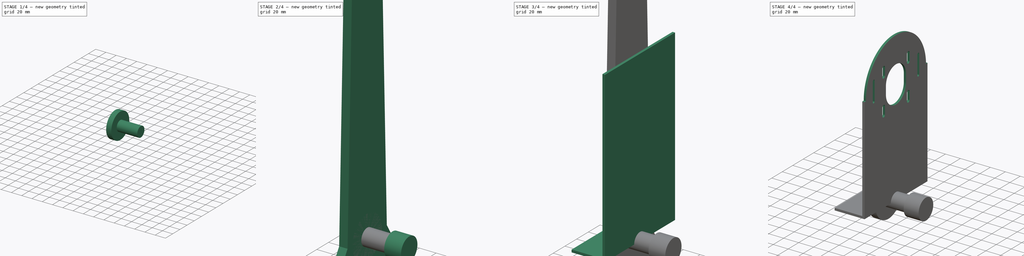
[diagram: build sequence overview — one tinted view per stage of 4, left to right]
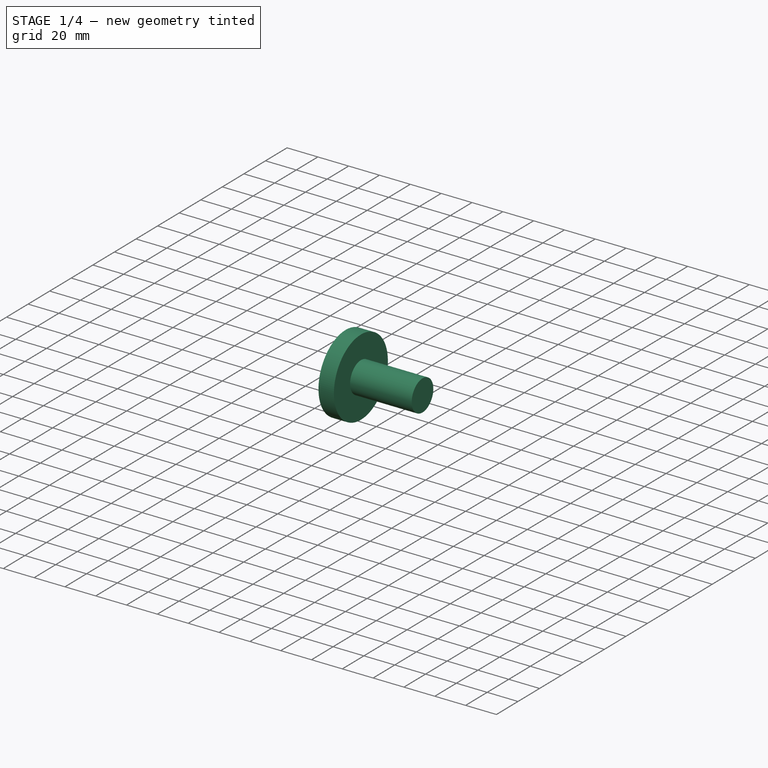
[diagram: stage 1 of 4 — iso view after this stage's code; geometry added in this stage tinted green]
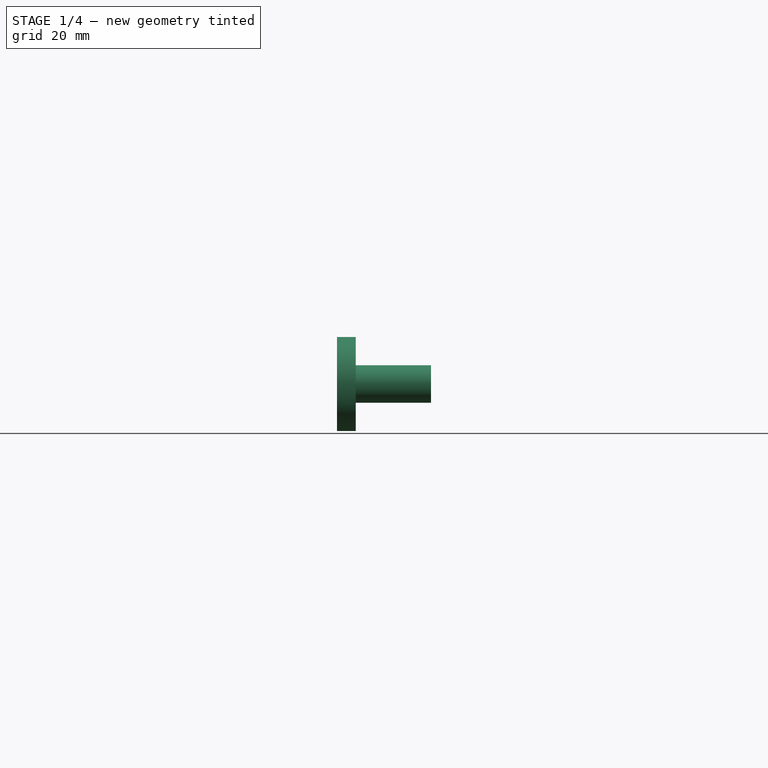
[diagram: stage 1 of 4 — front view after this stage's code; geometry added in this stage tinted green]
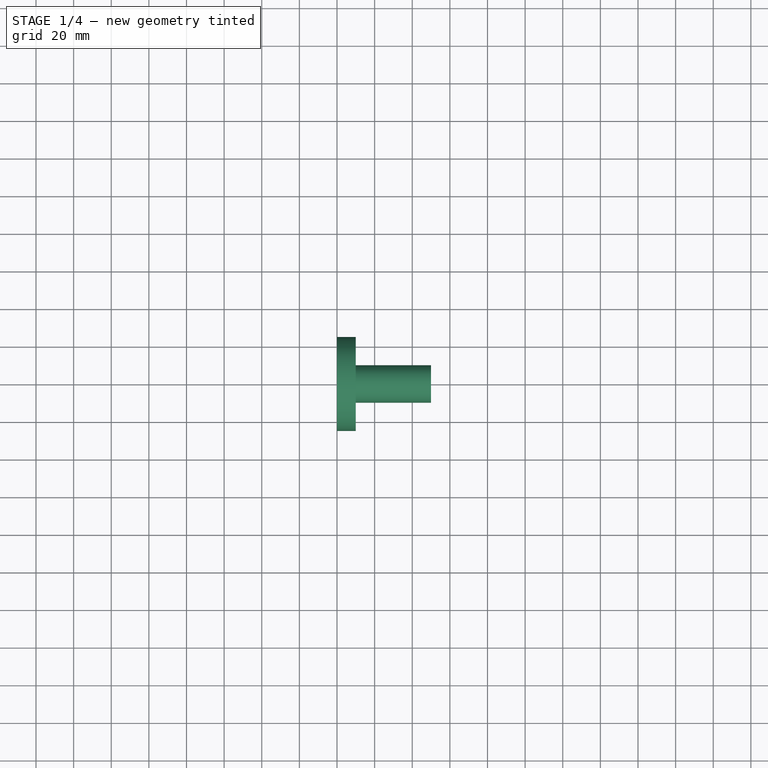
[diagram: stage 1 of 4 — top view after this stage's code; geometry added in this stage tinted green]
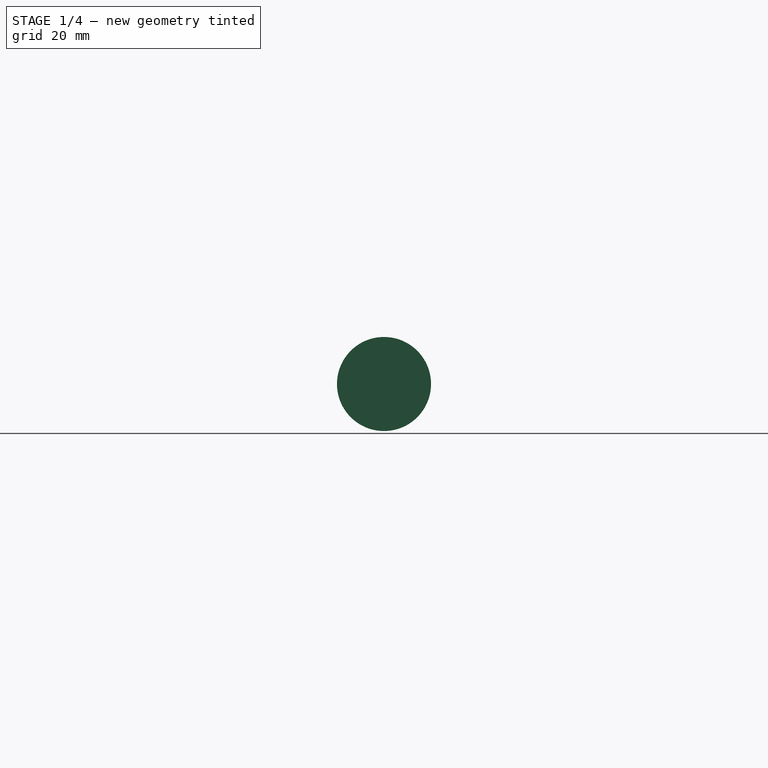
[diagram: stage 1 of 4 — right view after this stage's code; geometry added in this stage tinted green]
FCSTD DOCUMENT  (FreeCAD 0.21R33771 (Git))
Label: jrobot-y-axis-parts
License: All rights reserved
LicenseURL: http://en.wikipedia.org/wiki/All_rights_reserved
objects: PartDesign::CoordinateSystem×11, Sketcher::SketchObject×9, PartDesign::Pad×6, PartDesign::Body×3, App::Part×3, PartDesign::Pocket×2, PartDesign::Hole×1, App::DocumentObjectGroup×1
note: 41 computed .brp shape members not serialized (recipe doc carries the construction recipe); baked Part::Feature solids carry a one-line shape summary decoded from their .brp

FEATURE [PartDesign::Body] Body  label="B_Y_Axis_Base_Left"
  Group = -> [Sketch,Pad,Sketch001,Hole,Sketch002,Pad001,Sketch104,Pocket,Sketch105,Pocket001]
  Origin = -> Origin001
  Tip = -> Pocket001
FEATURE [App::Part] Part  label="P_Y_Axis_Base_Left"
  Group = -> [Body,LCS_Y_Axis_Base_Left_Bolt1,LCS_Y_Axis_Base_Left_Bolt0,LCS_Y_Axis_Base_Left_Bolt2,LCS_Y_Axis_Base_Left_Bolt3,LCS_Y_Axis_Base_Left_Origin,LCS_Y_Axis_Base_Pivot,LCS_Y_Axis_Base_Left_MotorMount]
  Origin = -> Origin
FEATURE [Sketcher::SketchObject] Sketch106
  FullyConstrained = true
  MapMode = 5
  Placement = pos=(0,0,0) rot=(0.57735,0.57735,0.57735;2.0944rad)
  Support = -> [YZ_Plane005]
  sketch-geometry (1):
    g0: Circle CenterX=0 CenterY=0 CenterZ=0 NormalX=0 NormalY=0 NormalZ=1 AngleXU=0 Radius=25
  constraints (2):
    c: Coincident(g0,g-1)
    c: Diameter(g0) = 50
FEATURE [PartDesign::Pad] Pad003
  Direction = (1,-2e-16,3e-16)
  Length = 10
  Length2 = 10
  Placement = pos=(0,0,0) rot=(1,1,1;2.0944rad)
  Profile = -> Sketch106
  ReferenceAxis = -> Sketch106 [N_Axis]
  Type = 0
FEATURE [PartDesign::CoordinateSystem] LCS_Origin
  AttacherType = Attacher::AttachEngine3D
FEATURE [Sketcher::SketchObject] Sketch107
  FullyConstrained = true
  MapMode = 5
  Placement = pos=(0,0,0) rot=(0.57735,0.57735,0.57735;2.0944rad)
  Support = -> [YZ_Plane005]
  sketch-geometry (1):
    g0: Circle CenterX=0 CenterY=0 CenterZ=0 NormalX=0 NormalY=0 NormalZ=1 AngleXU=0 Radius=10
  constraints (2):
    c: Coincident(g0,g-1)
    c: Diameter(g0) = 20
FEATURE [PartDesign::Pad] Pad004
  BaseFeature = -> Pad003
  Direction = (1,-2e-16,3e-16)
  Length = 50
  Length2 = 10
  Placement = pos=(0,0,0) rot=(1,1,1;2.0944rad)
  Profile = -> Sketch107
  ReferenceAxis = -> Sketch107 [N_Axis]
  Type = 0
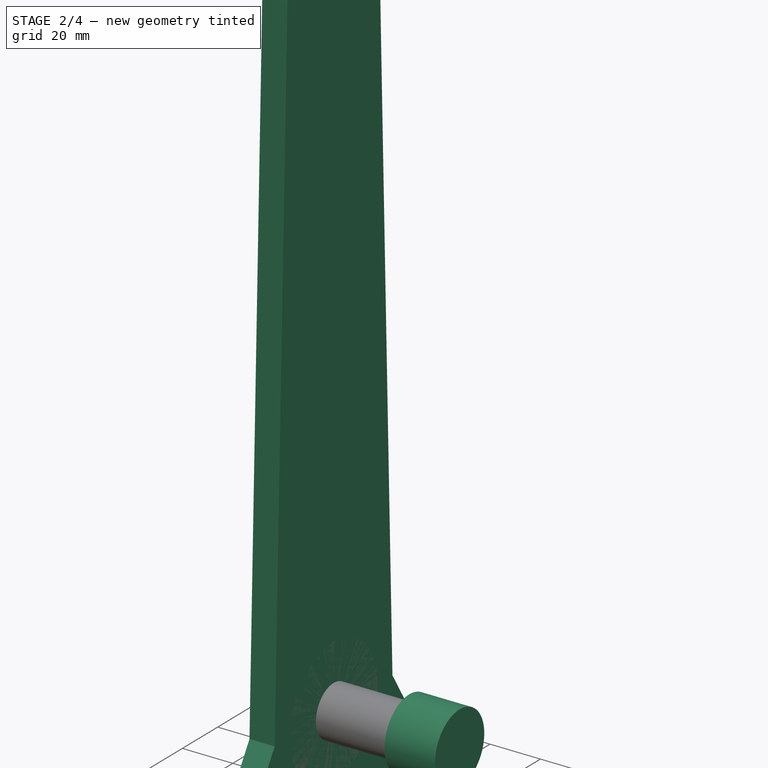
[diagram: stage 2 of 4 — iso view after this stage's code; geometry added in this stage tinted green]
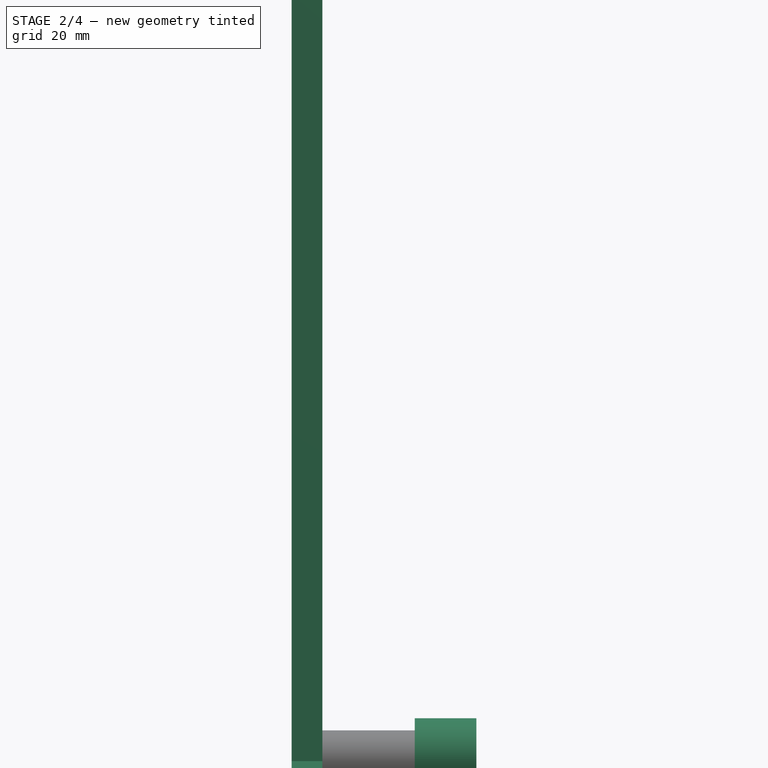
[diagram: stage 2 of 4 — front view after this stage's code; geometry added in this stage tinted green]
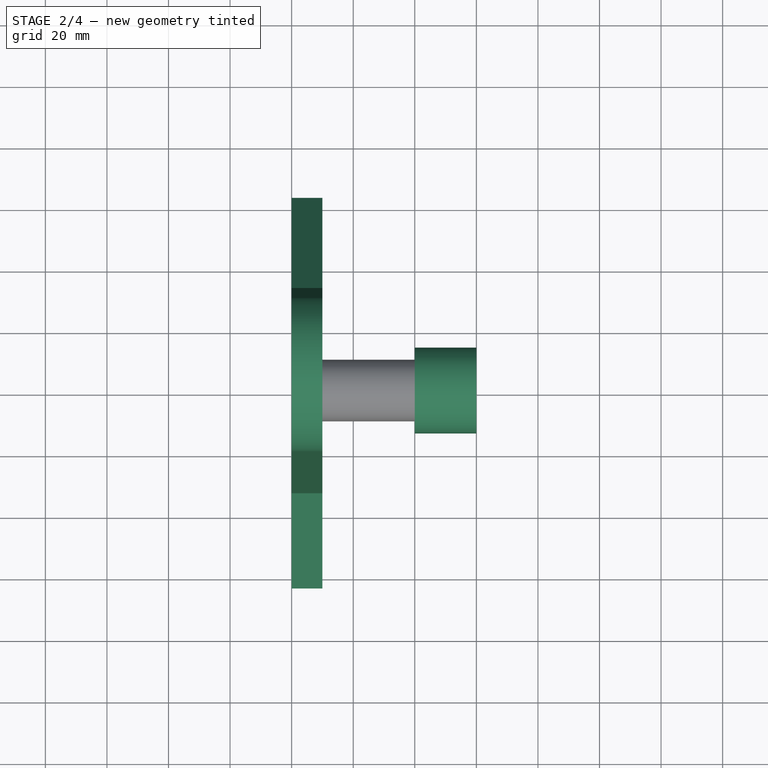
[diagram: stage 2 of 4 — top view after this stage's code; geometry added in this stage tinted green]
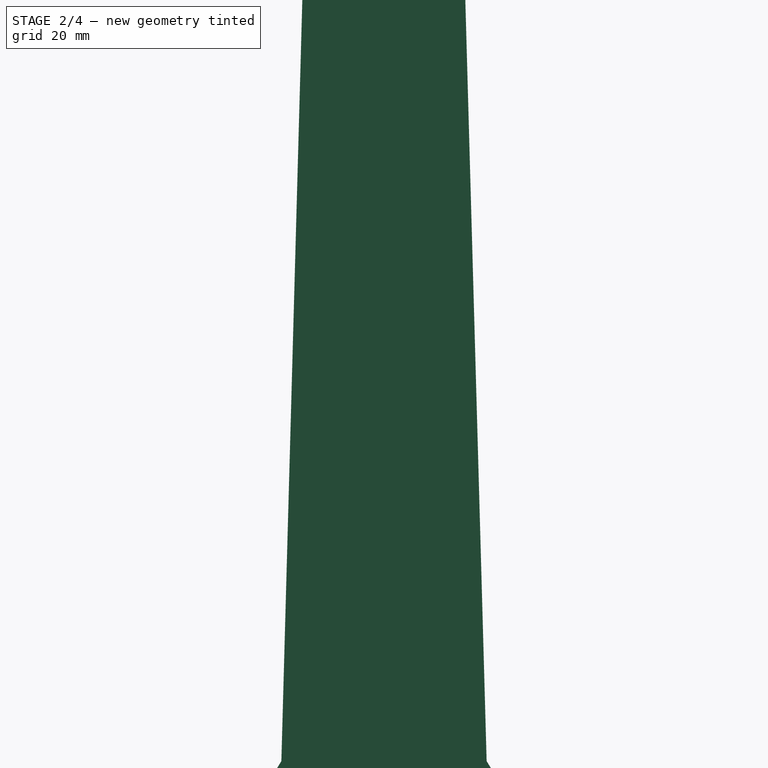
[diagram: stage 2 of 4 — right view after this stage's code; geometry added in this stage tinted green]
FEATURE [Sketcher::SketchObject] Sketch003
  FullyConstrained = false
  MapMode = 5
  Placement = pos=(0,0,0) rot=(0.57735,0.57735,0.57735;2.0944rad)
  Support = -> [YZ_Plane003]
  sketch-geometry (6):
    g0: ArcOfCircle CenterX=-0.0718095 CenterY=300 CenterZ=0 NormalX=0 NormalY=0 NormalZ=1 AngleXU=0 Radius=25 StartAngle=0.0279955 EndAngle=3.11407
    g1: LineSegment StartX=24.9184 StartY=300.7 StartZ=0 EndX=33.3388 EndY=0 EndZ=0
    g2: LineSegment StartX=-25.0623 StartY=300.688 StartZ=0 EndX=-33.3388 EndY=0 EndZ=0
    g3: LineSegment StartX=-33.3388 StartY=0 StartZ=0 EndX=-63.4439 EndY=-48.7326 EndZ=0
    g4: LineSegment StartX=33.3388 StartY=0 StartZ=0 EndX=63.4439 EndY=-48.7326 EndZ=0
    g5: ArcOfCircle CenterX=0 CenterY=0 CenterZ=0 NormalX=0 NormalY=0 NormalZ=1 AngleXU=0 Radius=80 StartAngle=3.79659 EndAngle=5.62819
  constraints (13):
    c: Tangent(g2,g0) = -1.5708
    c: Tangent(g1,g0) = 1.5708
    c: Diameter(g0) = 50
    c: Coincident(g3,g2)
    c: Coincident(g4,g1)
    c: Horizontal(g4,g3)
    c: Horizontal(g1,g-1)
    c: Symmetric(g2,g1,g-2)
    c: DistanceY(g-1,g0) = 300
    c: Coincident(g5,g3)
    c: Coincident(g4,g5)
    c: Diameter(g5) = 160
    c: Coincident(g5,g-1)
FEATURE [PartDesign::Pad] Pad002
  Direction = (1,-2e-16,3e-16)
  Length = 10
  Length2 = 10
  Placement = pos=(0,0,0) rot=(0.57735,0.57735,0.57735;2.0944rad)
  Profile = -> Sketch003
  ReferenceAxis = -> Sketch003 [N_Axis]
  Type = 0
FEATURE [Sketcher::SketchObject] Sketch108
  AttachmentOffset = pos=(0,0,40) rot=(0,0,1;0rad)
  FullyConstrained = false
  MapMode = 5
  Placement = pos=(40,-8.9e-15,8.9e-15) rot=(0.57735,0.57735,0.57735;2.0944rad)
  Support = -> [YZ_Plane005]
  sketch-geometry (1):
    g0: Circle CenterX=0 CenterY=0 CenterZ=0 NormalX=0 NormalY=0 NormalZ=1 AngleXU=0 Radius=13.9399
  constraints (1):
    c: Coincident(g0,g-1)
FEATURE [PartDesign::Pad] Pad005
  BaseFeature = -> Pad004
  Direction = (1,-2e-16,3e-16)
  Length = 20
  Length2 = 10
  Placement = pos=(0,0,0) rot=(1,1,1;2.0944rad)
  Profile = -> Sketch108
  ReferenceAxis = -> Sketch108 [N_Axis]
  Type = 0
FEATURE [PartDesign::Body] Body002  label="Body"
  Group = -> [Sketch106,Pad003,Sketch107,Pad004,Sketch108,Pad005]
  Origin = -> Origin005
  Tip = -> Pad005
FEATURE [App::Part] Part002  label="P_Y_Axis_RotorWheel"
  Group = -> [Body002,LCS_Origin]
  Origin = -> Origin004
FEATURE [App::DocumentObjectGroup] Group  label="Parts"
  Group = -> [Part,Part001,Part002]
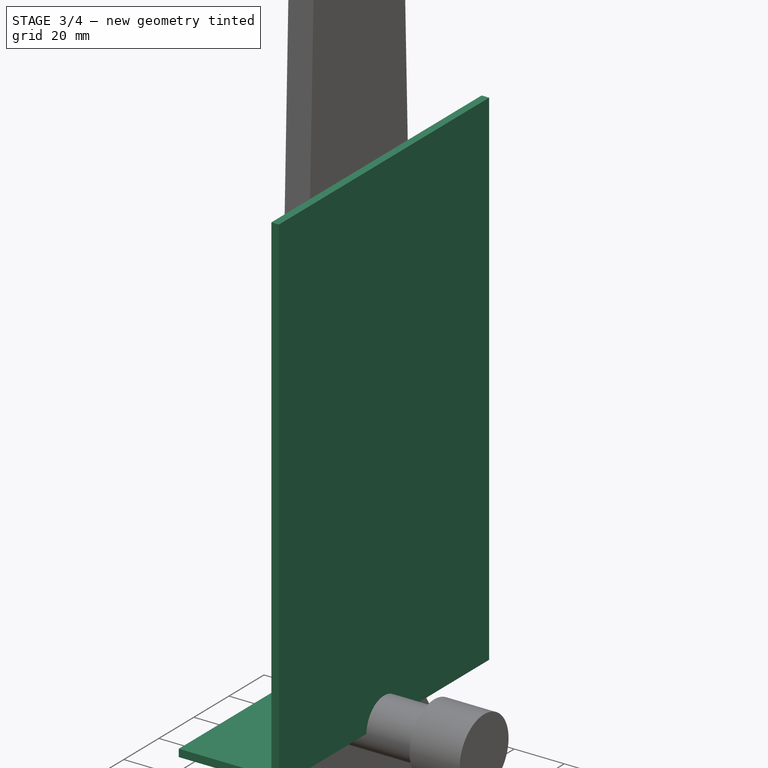
[diagram: stage 3 of 4 — iso view after this stage's code; geometry added in this stage tinted green]
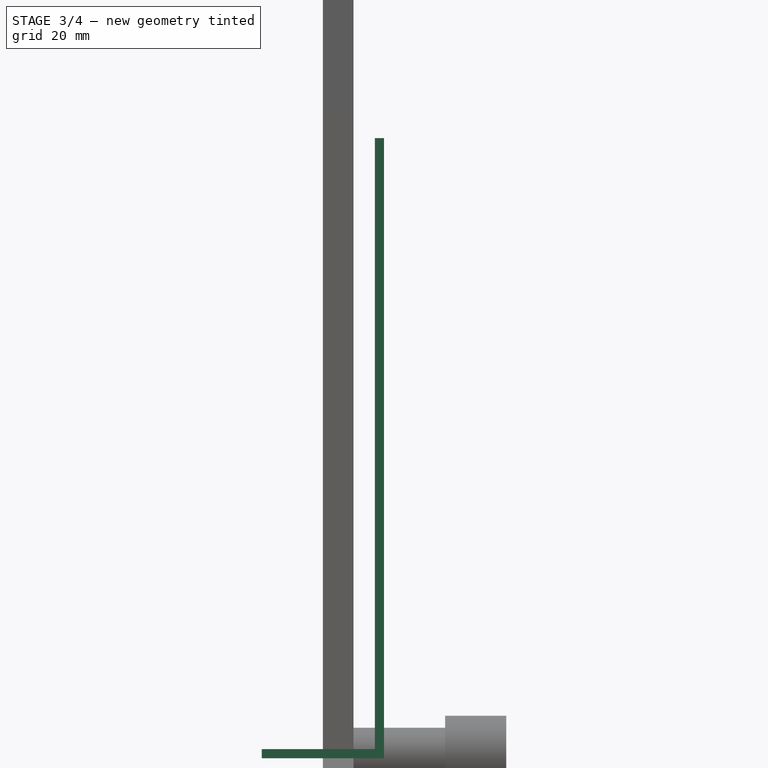
[diagram: stage 3 of 4 — front view after this stage's code; geometry added in this stage tinted green]
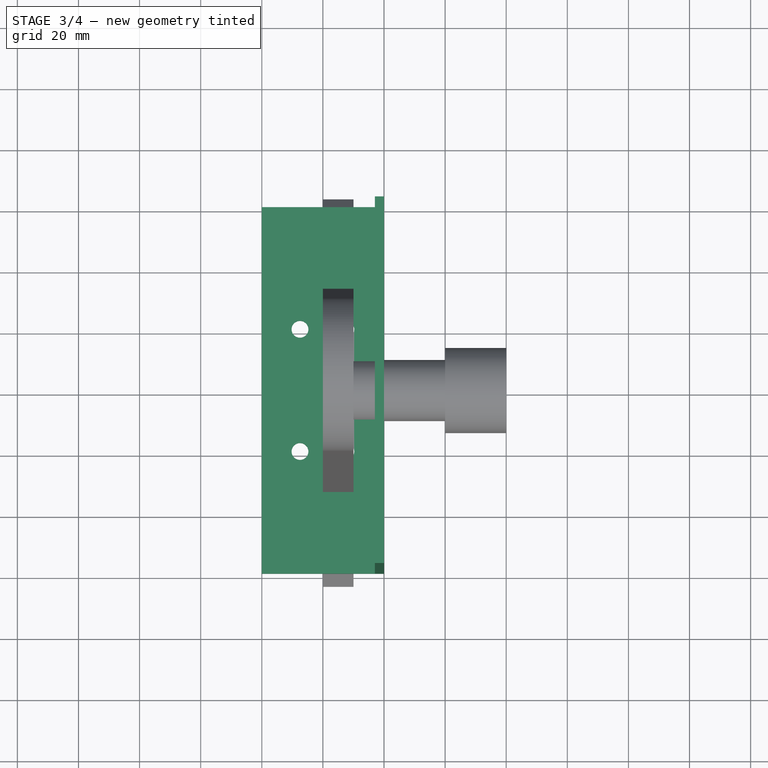
[diagram: stage 3 of 4 — top view after this stage's code; geometry added in this stage tinted green]
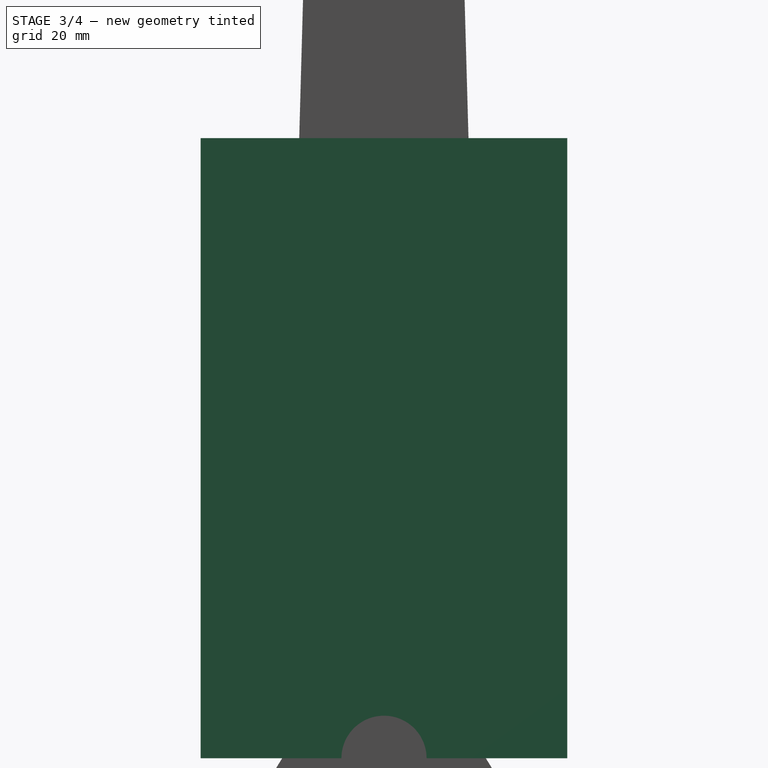
[diagram: stage 3 of 4 — right view after this stage's code; geometry added in this stage tinted green]
FEATURE [Sketcher::SketchObject] Sketch
  FullyConstrained = true
  MapMode = 5
  Support = -> [XY_Plane001]
  sketch-geometry (4):
    g0: LineSegment StartX=-20 StartY=60 StartZ=0 EndX=20 EndY=60 EndZ=0
    g1: LineSegment StartX=20 StartY=60 StartZ=0 EndX=20 EndY=-60 EndZ=0
    g2: LineSegment StartX=20 StartY=-60 StartZ=0 EndX=-20 EndY=-60 EndZ=0
    g3: LineSegment StartX=-20 StartY=-60 StartZ=0 EndX=-20 EndY=60 EndZ=0
  constraints (10):
    c: Coincident(g0,g1)
    c: Coincident(g1,g2)
    c: Coincident(g2,g3)
    c: Coincident(g3,g0)
    c: Horizontal(g2)
    c: Vertical(g1)
    c: Symmetric(g0,g0,g-2)
    c: Symmetric(g0,g2,g-1)
    c: DistanceX(g0,g0) = 40
    c: DistanceY(g3,g3) = 120
FEATURE [PartDesign::Pad] Pad
  Direction = (0,0,1)
  Length = 3
  Length2 = 10
  Profile = -> Sketch
  ReferenceAxis = -> Sketch [N_Axis]
  Type = 0
FEATURE [Sketcher::SketchObject] Sketch001
  AttachmentOffset = pos=(0,0,3) rot=(0,0,1;0rad)
  FullyConstrained = true
  MapMode = 5
  Placement = pos=(0,0,3) rot=(0,0,1;0rad)
  Support = -> [XY_Plane001]
  sketch-geometry (4):
    g0: Circle CenterX=-7.5 CenterY=20 CenterZ=0 NormalX=0 NormalY=0 NormalZ=1 AngleXU=0 Radius=2.5
    g1: Circle CenterX=7.5 CenterY=20 CenterZ=0 NormalX=0 NormalY=0 NormalZ=1 AngleXU=0 Radius=2.5
    g2: Circle CenterX=-7.5 CenterY=-20 CenterZ=0 NormalX=0 NormalY=0 NormalZ=1 AngleXU=0 Radius=2.5
    g3: Circle CenterX=7.5 CenterY=-20 CenterZ=0 NormalX=0 NormalY=0 NormalZ=1 AngleXU=0 Radius=2.5
  constraints (10):
    c: Horizontal(g3,g2)
    c: Vertical(g1,g3)
    c: Equal(g0,g1)
    c: Equal(g1,g3)
    c: Equal(g3,g2)
    c: Diameter(g0) = 5
    c: Symmetric(g0,g2,g-1)
    c: Symmetric(g0,g1,g-2)
    c: DistanceX(g2,g3) = 15
    c: DistanceY(g2,g0) = 40
FEATURE [PartDesign::Hole] Hole
  BaseFeature = -> Pad
  CustomThreadClearance = 0
  Depth = 25
  DepthType = 0
  Diameter = 5.5
  DrillForDepth = false
  DrillPoint = 1
  DrillPointAngle = 118
  HoleCutCountersinkAngle = 90
  HoleCutCustomValues = false
  HoleCutDepth = 0
  HoleCutDiameter = 6.1
  HoleCutType = 0
  ModelThread = false
  Profile = -> Sketch001
  Tapered = false
  TaperedAngle = 90
  ThreadClass = 0
  ThreadDepth = 25
  ThreadDepthType = 0
  ThreadDirection = 0
  ThreadFit = 0
  ThreadSize = 13
  ThreadType = 1
  Threaded = false
  UseCustomThreadClearance = false
FEATURE [PartDesign::CoordinateSystem] LCS_Y_Axis_Base_Left_Bolt0  label="LCS_Y_Axis_Base_Left_Bolt1"
  AttacherType = Attacher::AttachEngine3D
  MapMode = 11
  Placement = pos=(-7.5,-20,3) rot=(0,0,1;1.5708rad)
  Support = -> [Hole]
FEATURE [PartDesign::CoordinateSystem] LCS_Y_Axis_Base_Left_Bolt1  label="LCS_Y_Axis_Base_Left_Bolt0"
  AttacherType = Attacher::AttachEngine3D
  MapMode = 11
  Placement = pos=(-7.5,20,3) rot=(0,0,1;1.5708rad)
  Support = -> [Sketch001]
FEATURE [PartDesign::CoordinateSystem] LCS_Y_Axis_Base_Left_Bolt2
  AttacherType = Attacher::AttachEngine3D
  MapMode = 11
  Placement = pos=(7.5,20,3) rot=(0,0,1;1.5708rad)
  Support = -> [Hole]
FEATURE [PartDesign::CoordinateSystem] LCS_Y_Axis_Base_Left_Bolt3
  AttacherType = Attacher::AttachEngine3D
  MapMode = 11
  Placement = pos=(7.5,-20,3) rot=(0,0,1;1.5708rad)
  Support = -> [Hole]
FEATURE [PartDesign::CoordinateSystem] LCS_Y_Axis_Base_Left_Origin
  AttacherType = Attacher::AttachEngine3D
FEATURE [Sketcher::SketchObject] Sketch002
  AttachmentOffset = pos=(0,0,3) rot=(0,0,1;0rad)
  FullyConstrained = true
  MapMode = 5
  Placement = pos=(0,0,3) rot=(0,0,1;0rad)
  Support = -> [XY_Plane001]
  sketch-geometry (4):
    g0: LineSegment StartX=17 StartY=60 StartZ=0 EndX=20 EndY=60 EndZ=0
    g1: LineSegment StartX=20 StartY=60 StartZ=0 EndX=20 EndY=-60 EndZ=0
    g2: LineSegment StartX=20 StartY=-60 StartZ=0 EndX=17 EndY=-60 EndZ=0
    g3: LineSegment StartX=17 StartY=-60 StartZ=0 EndX=17 EndY=60 EndZ=0
  constraints (11):
    c: Coincident(g0,g1)
    c: Coincident(g1,g2)
    c: Coincident(g2,g3)
    c: Coincident(g3,g0)
    c: Horizontal(g0)
    c: Horizontal(g2)
    c: Vertical(g1)
    c: DistanceY(g1,g1) = 120
    c: DistanceX(g-1,g1) = 20
    c: DistanceX(g2,g2) = 3
    c: Symmetric(g2,g0,g-1)
FEATURE [PartDesign::Pad] Pad001
  BaseFeature = -> Hole
  Direction = (0,0,1)
  Length = 200
  Length2 = 10
  Profile = -> Sketch002
  ReferenceAxis = -> Sketch002 [N_Axis]
  Type = 0
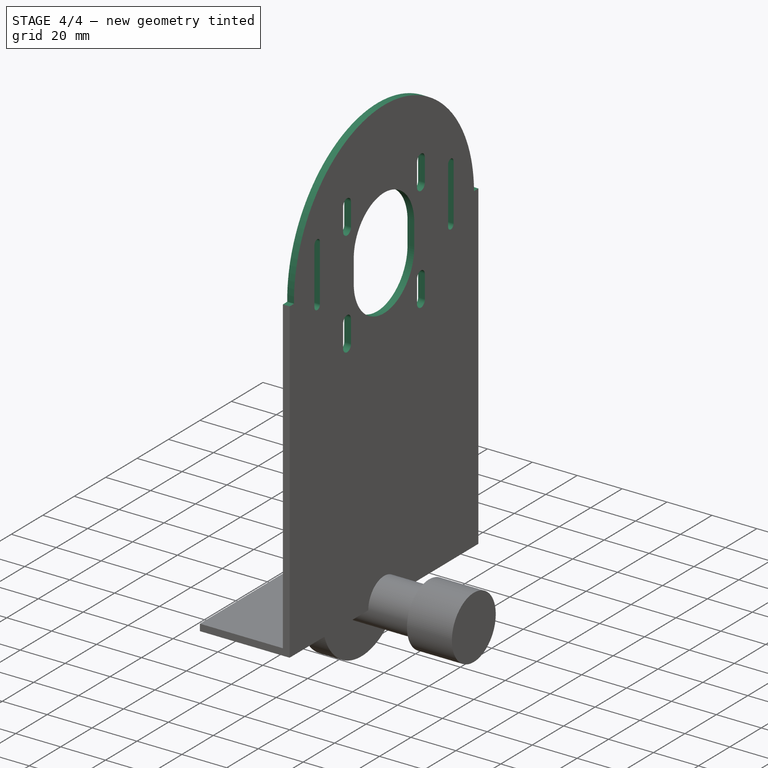
[diagram: stage 4 of 4 — iso view after this stage's code; geometry added in this stage tinted green]
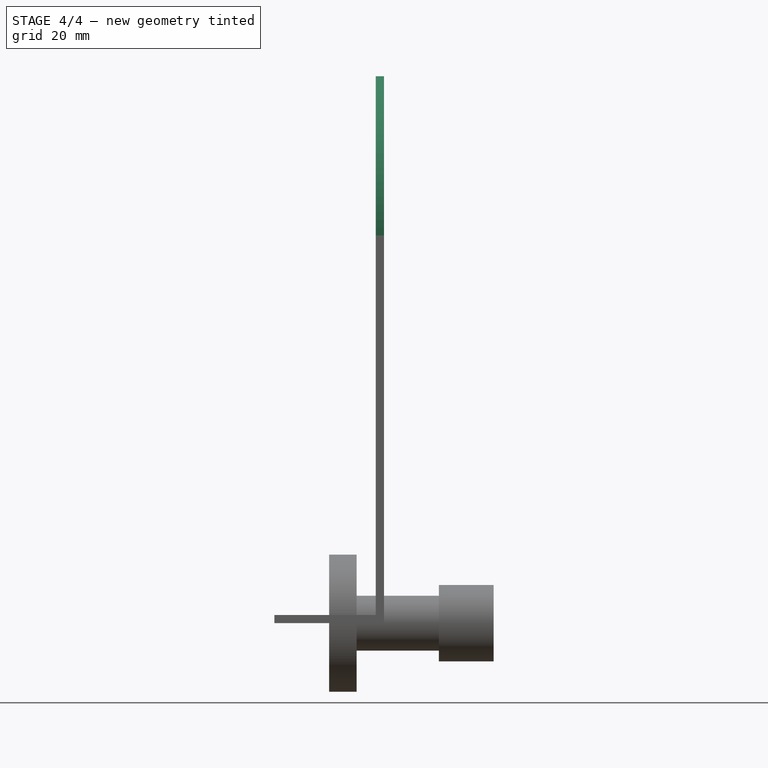
[diagram: stage 4 of 4 — front view after this stage's code; geometry added in this stage tinted green]
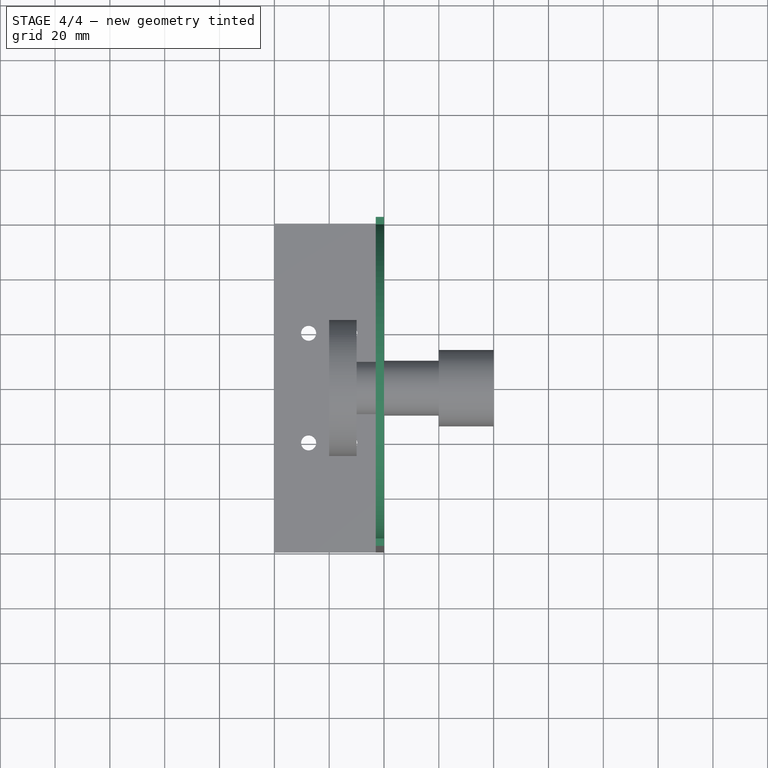
[diagram: stage 4 of 4 — top view after this stage's code; geometry added in this stage tinted green]
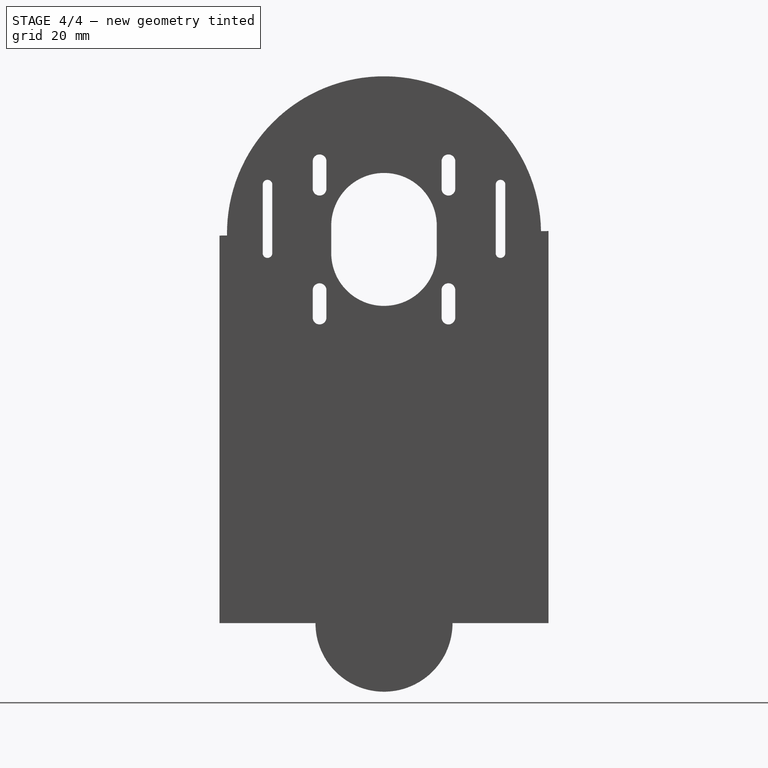
[diagram: stage 4 of 4 — right view after this stage's code; geometry added in this stage tinted green]
FEATURE [PartDesign::Body] Body001  label="B_Y_Axis_Arm_Left"
  Group = -> [Sketch003,Pad002]
  Origin = -> Origin003
  Tip = -> Pad002
FEATURE [PartDesign::CoordinateSystem] LCS_Y_Axis_Base_Pivot
  AttacherType = Attacher::AttachEngine3D
  Placement = pos=(20,0,140) rot=(0,0,1;0rad)
FEATURE [PartDesign::CoordinateSystem] LCS_Y_Axis_Arm_Left_Pivot
  AttacherType = Attacher::AttachEngine3D
FEATURE [PartDesign::CoordinateSystem] LCS_Y_Axis_Base_Left_MotorMount
  AttacherType = Attacher::AttachEngine3D
  Placement = pos=(17,0,80) rot=(0,0,1;0rad)
FEATURE [PartDesign::CoordinateSystem] LCS_Y_Axis_ZMotor
  AttacherType = Attacher::AttachEngine3D
  Placement = pos=(0,0,70) rot=(0,0,1;0rad)
FEATURE [PartDesign::CoordinateSystem] LCS_Y_Axis_ZPivot
  AttacherType = Attacher::AttachEngine3D
  Placement = pos=(0,0,120) rot=(0,0,1;0rad)
FEATURE [App::Part] Part001  label="P_Y_Axis_Arm_Left"
  Group = -> [Body001,LCS_Y_Axis_Arm_Left_Pivot,LCS_Y_Axis_ZMotor,LCS_Y_Axis_ZPivot]
  Origin = -> Origin002
FEATURE [Sketcher::SketchObject] Sketch104  label="S_Y_Axis_MotorMount_Slots"
  AttachmentOffset = pos=(0,140,20) rot=(0,0,1;0rad)
  FullyConstrained = true
  MapMode = 4
  Placement = pos=(20,0,140) rot=(0.57735,0.57735,0.57735;2.0944rad)
  Support = -> [Part001]
  sketch-geometry (28):
    g0: ArcOfCircle CenterX=-23.5 CenterY=28.5 CenterZ=0 NormalX=0 NormalY=0 NormalZ=1 AngleXU=0 Radius=2.5 StartAngle=0 EndAngle=3.14159
    g1: ArcOfCircle CenterX=-23.5 CenterY=18.5 CenterZ=0 NormalX=0 NormalY=0 NormalZ=1 AngleXU=0 Radius=2.5 StartAngle=3.14159 EndAngle=6.28319
    g2: LineSegment StartX=-26 StartY=28.5 StartZ=0 EndX=-26 EndY=18.5 EndZ=0
    g3: LineSegment StartX=-21 StartY=18.5 StartZ=0 EndX=-21 EndY=28.5 EndZ=0
    g4: ArcOfCircle CenterX=23.5 CenterY=28.5 CenterZ=0 NormalX=0 NormalY=0 NormalZ=1 AngleXU=0 Radius=2.5 StartAngle=3e-16 EndAngle=3.14159
    g5: ArcOfCircle CenterX=23.5 CenterY=18.5 CenterZ=0 NormalX=0 NormalY=0 NormalZ=1 AngleXU=0 Radius=2.5 StartAngle=3.14159 EndAngle=6.28319
    g6: LineSegment StartX=21 StartY=28.5 StartZ=0 EndX=21 EndY=18.5 EndZ=0
    g7: LineSegment StartX=26 StartY=18.5 StartZ=0 EndX=26 EndY=28.5 EndZ=0
    g8: ArcOfCircle CenterX=23.5 CenterY=-18.5 CenterZ=0 NormalX=0 NormalY=0 NormalZ=1 AngleXU=0 Radius=2.5 StartAngle=6e-16 EndAngle=3.14159
    g9: ArcOfCircle CenterX=23.5 CenterY=-28.5 CenterZ=0 NormalX=0 NormalY=0 NormalZ=1 AngleXU=0 Radius=2.5 StartAngle=3.14159 EndAngle=6.28319
    g10: LineSegment StartX=21 StartY=-18.5 StartZ=0 EndX=21 EndY=-28.5 EndZ=0
    g11: LineSegment StartX=26 StartY=-28.5 StartZ=0 EndX=26 EndY=-18.5 EndZ=0
    g12: ArcOfCircle CenterX=-23.5 CenterY=-18.5 CenterZ=0 NormalX=0 NormalY=0 NormalZ=1 AngleXU=0 Radius=2.5 StartAngle=0 EndAngle=3.14159
    g13: ArcOfCircle CenterX=-23.5 CenterY=-28.5 CenterZ=0 NormalX=0 NormalY=0 NormalZ=1 AngleXU=0 Radius=2.5 StartAngle=3.14159 EndAngle=6.28319
    g14: LineSegment StartX=-26 StartY=-18.5 StartZ=0 EndX=-26 EndY=-28.5 EndZ=0
    g15: LineSegment StartX=-21 StartY=-28.5 StartZ=0 EndX=-21 EndY=-18.5 EndZ=0
    g16: ArcOfCircle CenterX=-1e-16 CenterY=5 CenterZ=0 NormalX=0 NormalY=0 NormalZ=1 AngleXU=0 Radius=19.25 StartAngle=0 EndAngle=3.14159
    g17: ArcOfCircle CenterX=1e-16 CenterY=-5 CenterZ=0 NormalX=0 NormalY=0 NormalZ=1 AngleXU=0 Radius=19.25 StartAngle=3.14159 EndAngle=6.28319
    g18: LineSegment StartX=-19.25 StartY=5 StartZ=0 EndX=-19.25 EndY=-5 EndZ=0
    g19: LineSegment StartX=19.25 StartY=-5 StartZ=0 EndX=19.25 EndY=5 EndZ=0
    g20: ArcOfCircle CenterX=-42.5 CenterY=20 CenterZ=0 NormalX=0 NormalY=0 NormalZ=1 AngleXU=0 Radius=1.75 StartAngle=-9.41e-14 EndAngle=3.14159
    g21: ArcOfCircle CenterX=-42.5 CenterY=-5 CenterZ=0 NormalX=0 NormalY=0 NormalZ=1 AngleXU=0 Radius=1.75 StartAngle=3.14159 EndAngle=6.28319
    g22: LineSegment StartX=-44.25 StartY=20 StartZ=0 EndX=-44.25 EndY=-5 EndZ=0
    g23: LineSegment StartX=-40.75 StartY=-5 StartZ=0 EndX=-40.75 EndY=20 EndZ=0
    g24: ArcOfCircle CenterX=42.5 CenterY=20 CenterZ=0 NormalX=0 NormalY=0 NormalZ=1 AngleXU=0 Radius=1.75 StartAngle=7.2e-15 EndAngle=3.14159
    g25: ArcOfCircle CenterX=42.5 CenterY=-5 CenterZ=0 NormalX=0 NormalY=0 NormalZ=1 AngleXU=0 Radius=1.75 StartAngle=3.14159 EndAngle=6.28319
    g26: LineSegment StartX=40.75 StartY=20 StartZ=0 EndX=40.75 EndY=-5 EndZ=0
    g27: LineSegment StartX=44.25 StartY=-5 StartZ=0 EndX=44.25 EndY=20 EndZ=0
  constraints (67):
    c: Tangent(g0,g2) = -1.5708
    c: Tangent(g2,g1) = -1.5708
    c: Tangent(g1,g3) = -1.5708
    c: Tangent(g3,g0) = -1.5708
    c: Equal(g0,g1)
    c: Vertical(g2)
    c: Tangent(g4,g6) = -1.5708
    c: Tangent(g6,g5) = -1.5708
    c: Tangent(g5,g7) = -1.5708
    c: Tangent(g7,g4) = -1.5708
    c: Equal(g4,g5)
    c: Vertical(g6)
    c: Tangent(g8,g10) = -1.5708
    c: Tangent(g10,g9) = -1.5708
    c: Tangent(g9,g11) = -1.5708
    c: Tangent(g11,g8) = -1.5708
    c: Equal(g8,g9)
    c: Tangent(g12,g14) = -1.5708
    c: Tangent(g14,g13) = -1.5708
    c: Tangent(g13,g15) = -1.5708
    c: Tangent(g15,g12) = -1.5708
    c: Equal(g12,g13)
    c: DistanceX(g0,g4) = 47
    c: DistanceY(g12,g0) = 47
    c: Vertical(g0,g12)
    c: Vertical(g8,g4)
    c: Vertical(g11)
    c: Vertical(g15)
    c: DistanceY(g1,g0) = 10
    c: DistanceY(g5,g4) = 10
    c: DistanceY(g9,g8) = 10
    c: DistanceY(g13,g12) = 10
    c: Equal(g12,g0)
    c: Equal(g0,g4)
    c: Equal(g4,g8)
    c: Horizontal(g12,g8)
    c: Horizontal(g0,g4)
    c: DistanceX(g1,g1) = 5
    c: Symmetric(g0,g9,g-1)
    c: Tangent(g16,g18) = -1.5708
    c: Tangent(g18,g17) = -1.5708
    c: Tangent(g17,g19) = -1.5708
    c: Tangent(g19,g16) = -1.5708
    c: Equal(g16,g17)
    c: Vertical(g18)
    c: Symmetric(g16,g17,g-1)
    c: DistanceY(g17,g16) = 10
    c: Diameter(g16) = 38.5
    c: Tangent(g20,g22) = -1.5708
    c: Tangent(g22,g21) = -1.5708
    c: Tangent(g21,g23) = -1.5708
    c: Tangent(g23,g20) = -1.5708
    c: Equal(g20,g21)
    c: Vertical(g22)
    c: Tangent(g24,g26) = -1.5708
    c: Tangent(g26,g25) = -1.5708
    c: Tangent(g25,g27) = -1.5708
    c: Tangent(g27,g24) = -1.5708
    c: Equal(g24,g25)
    c: Vertical(g26)
    c: DistanceX(g25,g25) = 3.5
    c: DistanceX(g21,g21) = 3.5
    c: DistanceX(g20,g-1) = 42.5
    c: Horizontal(g21,g25)
    c: DistanceY(g22,g22) = 25
    c: DistanceY(g-1,g20) = 20
    c: Symmetric(g24,g20,g-2)
FEATURE [PartDesign::Pocket] Pocket
  BaseFeature = -> Pad001
  Direction = (-1,0,0)
  Length = 5
  Length2 = 5
  Profile = -> Sketch104
  ReferenceAxis = -> Sketch104 [N_Axis]
  Type = 0
FEATURE [Sketcher::SketchObject] Sketch105
  AttachmentOffset = pos=(0,0,20) rot=(0,0,1;0rad)
  FullyConstrained = false
  MapMode = 5
  Placement = pos=(20,-4.4e-15,4.4e-15) rot=(0.57735,0.57735,0.57735;2.0944rad)
  Support = -> [YZ_Plane001]
  sketch-geometry (6):
    g0: ArcOfCircle CenterX=0 CenterY=142.229 CenterZ=0 NormalX=0 NormalY=0 NormalZ=1 AngleXU=0 Radius=113.119 StartAngle=0.0137959 EndAngle=3.15539
    g1: ArcOfCircle CenterX=0 CenterY=142.229 CenterZ=0 NormalX=0 NormalY=0 NormalZ=1 AngleXU=0 Radius=57.2801 StartAngle=0.0137959 EndAngle=3.15539
    g2: LineSegment StartX=113.108 StartY=143.79 StartZ=0 EndX=57.2747 EndY=143.02 EndZ=0
    g3: LineSegment StartX=-113.108 StartY=140.669 StartZ=0 EndX=-57.2747 EndY=141.439 EndZ=0
    g4: LineSegment StartX=-57.2747 StartY=141.439 StartZ=0 EndX=0 EndY=142.229 EndZ=0
    g5: LineSegment StartX=0 StartY=142.229 StartZ=0 EndX=57.2747 EndY=143.02 EndZ=0
  constraints (13):
    c: Coincident(g1,g0)
    c: Coincident(g2,g0)
    c: Coincident(g2,g1)
    c: Coincident(g3,g0)
    c: Coincident(g3,g1)
    c: Coincident(g4,g1)
    c: Coincident(g4,g0)
    c: Coincident(g5,g0)
    c: Coincident(g5,g1)
    c: Tangent(g2,g5)
    c: Tangent(g4,g3)
    c: Angle(g5,g4) = 3.14159
    c: PointOnObject(g0,g-2)
FEATURE [PartDesign::Pocket] Pocket001
  BaseFeature = -> Pocket
  Direction = (-1,2e-16,-3e-16)
  Length = 5
  Length2 = 5
  Profile = -> Sketch105
  ReferenceAxis = -> Sketch105 [N_Axis]
  Type = 0
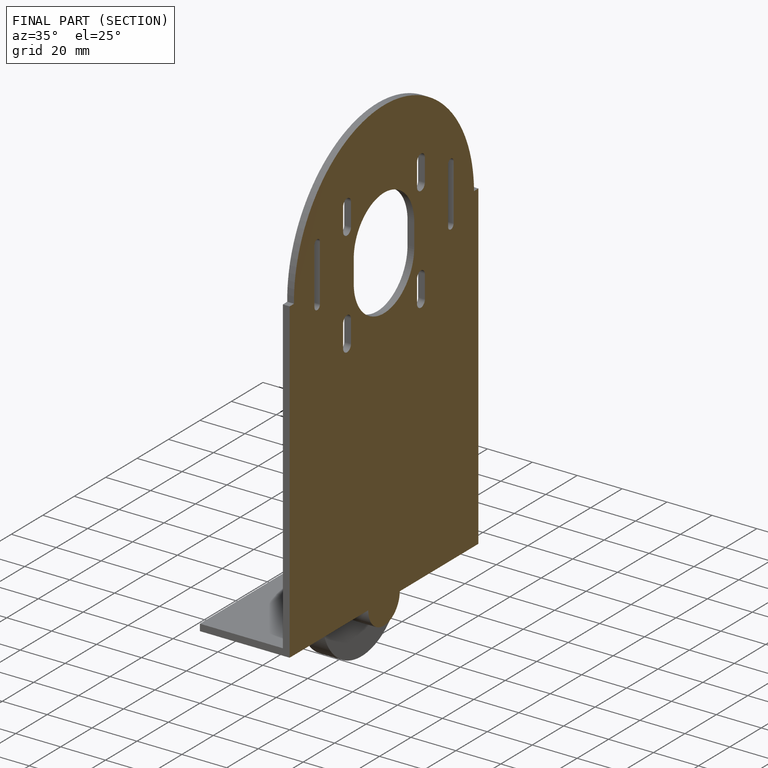
[diagram: finished part — half-section view (interior)]
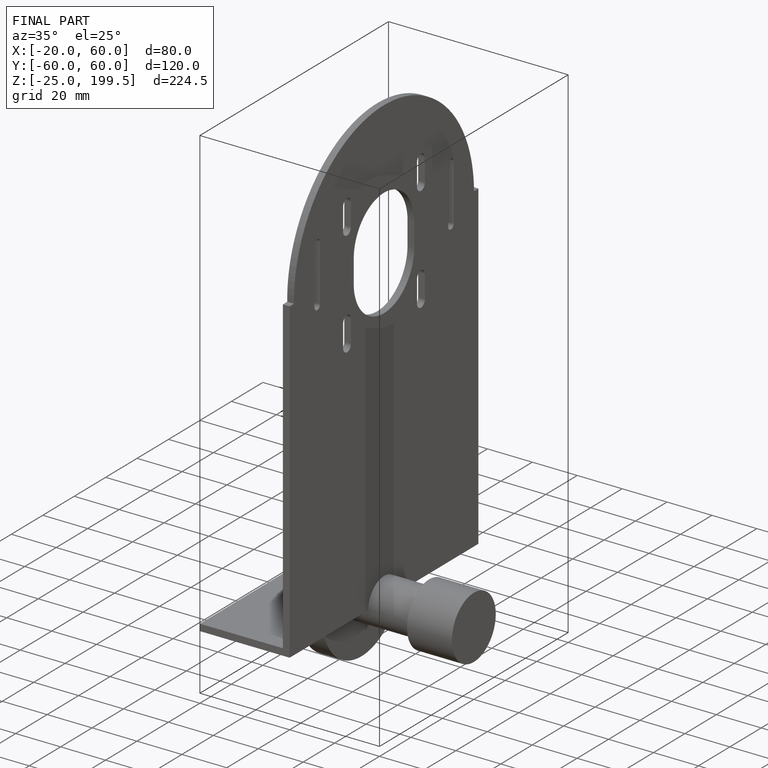
[diagram: finished part — iso view with bounding-box wireframe]
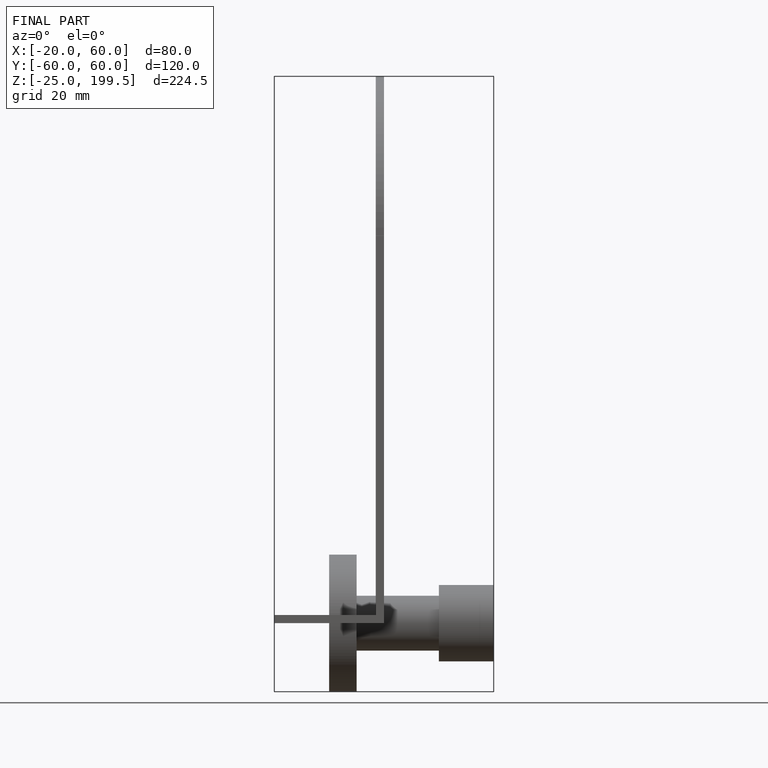
[diagram: finished part — front view with bounding-box wireframe]
